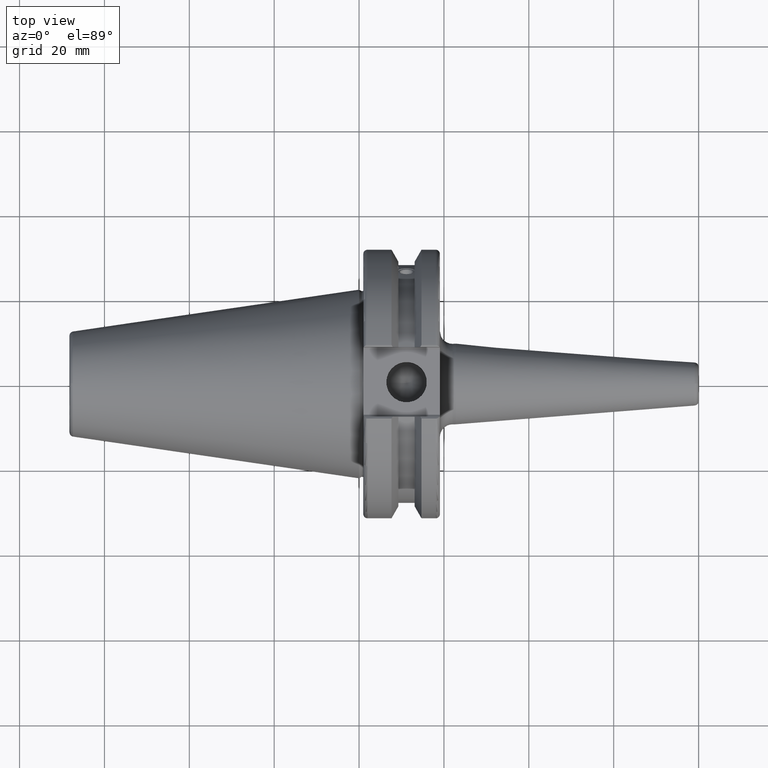
[diagram: clean part render]
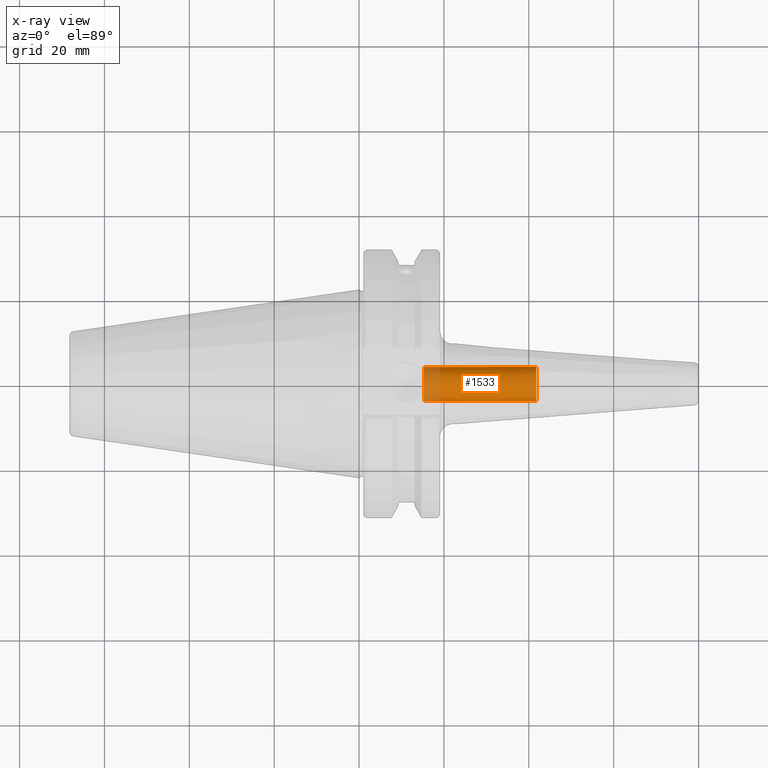
[diagram: x-ray — body ghosted, one internal face saturated and labeled with its STEP entity id]
A machine part, top view, then the same camera in x-ray: the body is ghosted and one INTERNAL B-rep face — a face not visible from any outside direction — is saturated and labeled: STEP entity #1533.
In plain terms, the highlighted cylindrical surface (bore or boss wall) has radius 4 mm, axis along (1, 0, 0).
Its self-contained STEP definition (entity closure, byte-faithful):
#87=CYLINDRICAL_SURFACE('',#1661,4.);
#179=LINE('',#2352,#277);
#277=VECTOR('',#1891,4.);
#385=FACE_OUTER_BOUND('',#476,.T.);
#476=EDGE_LOOP('',(#1088,#1089,#1090,#1091,#1092));
#582=CIRCLE('',#1660,4.);
#583=CIRCLE('',#1662,4.);
#584=CIRCLE('',#1663,4.);
#665=VERTEX_POINT('',#2345);
#666=VERTEX_POINT('',#2349);
#667=VERTEX_POINT('',#2350);
#828=EDGE_CURVE('',#665,#665,#582,.T.);
#830=EDGE_CURVE('',#666,#667,#583,.T.);
#831=EDGE_CURVE('',#666,#665,#179,.T.);
#832=EDGE_CURVE('',#667,#666,#584,.T.);
#1088=ORIENTED_EDGE('',*,*,#830,.F.);
#1089=ORIENTED_EDGE('',*,*,#831,.T.);
#1090=ORIENTED_EDGE('',*,*,#828,.T.);
#1091=ORIENTED_EDGE('',*,*,#831,.F.);
#1092=ORIENTED_EDGE('',*,*,#832,.F.);
#1533=ADVANCED_FACE('',(#385),#87,.F.);
#1660=AXIS2_PLACEMENT_3D('',#2346,#1884,#1885);
#1661=AXIS2_PLACEMENT_3D('',#2348,#1887,#1888);
#1662=AXIS2_PLACEMENT_3D('',#2351,#1889,#1890);
#1663=AXIS2_PLACEMENT_3D('',#2353,#1892,#1893);
#1884=DIRECTION('center_axis',(1.,0.,0.));
#1885=DIRECTION('ref_axis',(0.,1.,0.));
#1887=DIRECTION('center_axis',(1.,0.,0.));
#1888=DIRECTION('ref_axis',(0.,1.,0.));
#1889=DIRECTION('center_axis',(1.,0.,0.));
#1890=DIRECTION('ref_axis',(0.,1.,0.));
#1891=DIRECTION('',(1.,0.,0.));
#1892=DIRECTION('center_axis',(1.,0.,0.));
#1893=DIRECTION('ref_axis',(0.,1.,0.));
#2345=CARTESIAN_POINT('',(41.75,-4.,-4.89858719658941E-16));
#2346=CARTESIAN_POINT('Origin',(41.75,0.,0.));
#2348=CARTESIAN_POINT('Origin',(-13.25,0.,0.));
#2349=CARTESIAN_POINT('',(15.2521515475689,-4.,-4.89858719658941E-16));
#2350=CARTESIAN_POINT('',(15.2521515475689,-4.89858719658941E-16,-4.));
#2351=CARTESIAN_POINT('Origin',(15.2521515475689,0.,0.));
#2352=CARTESIAN_POINT('',(-13.25,-4.,-4.89858719658941E-16));
#2353=CARTESIAN_POINT('Origin',(15.2521515475689,0.,0.));